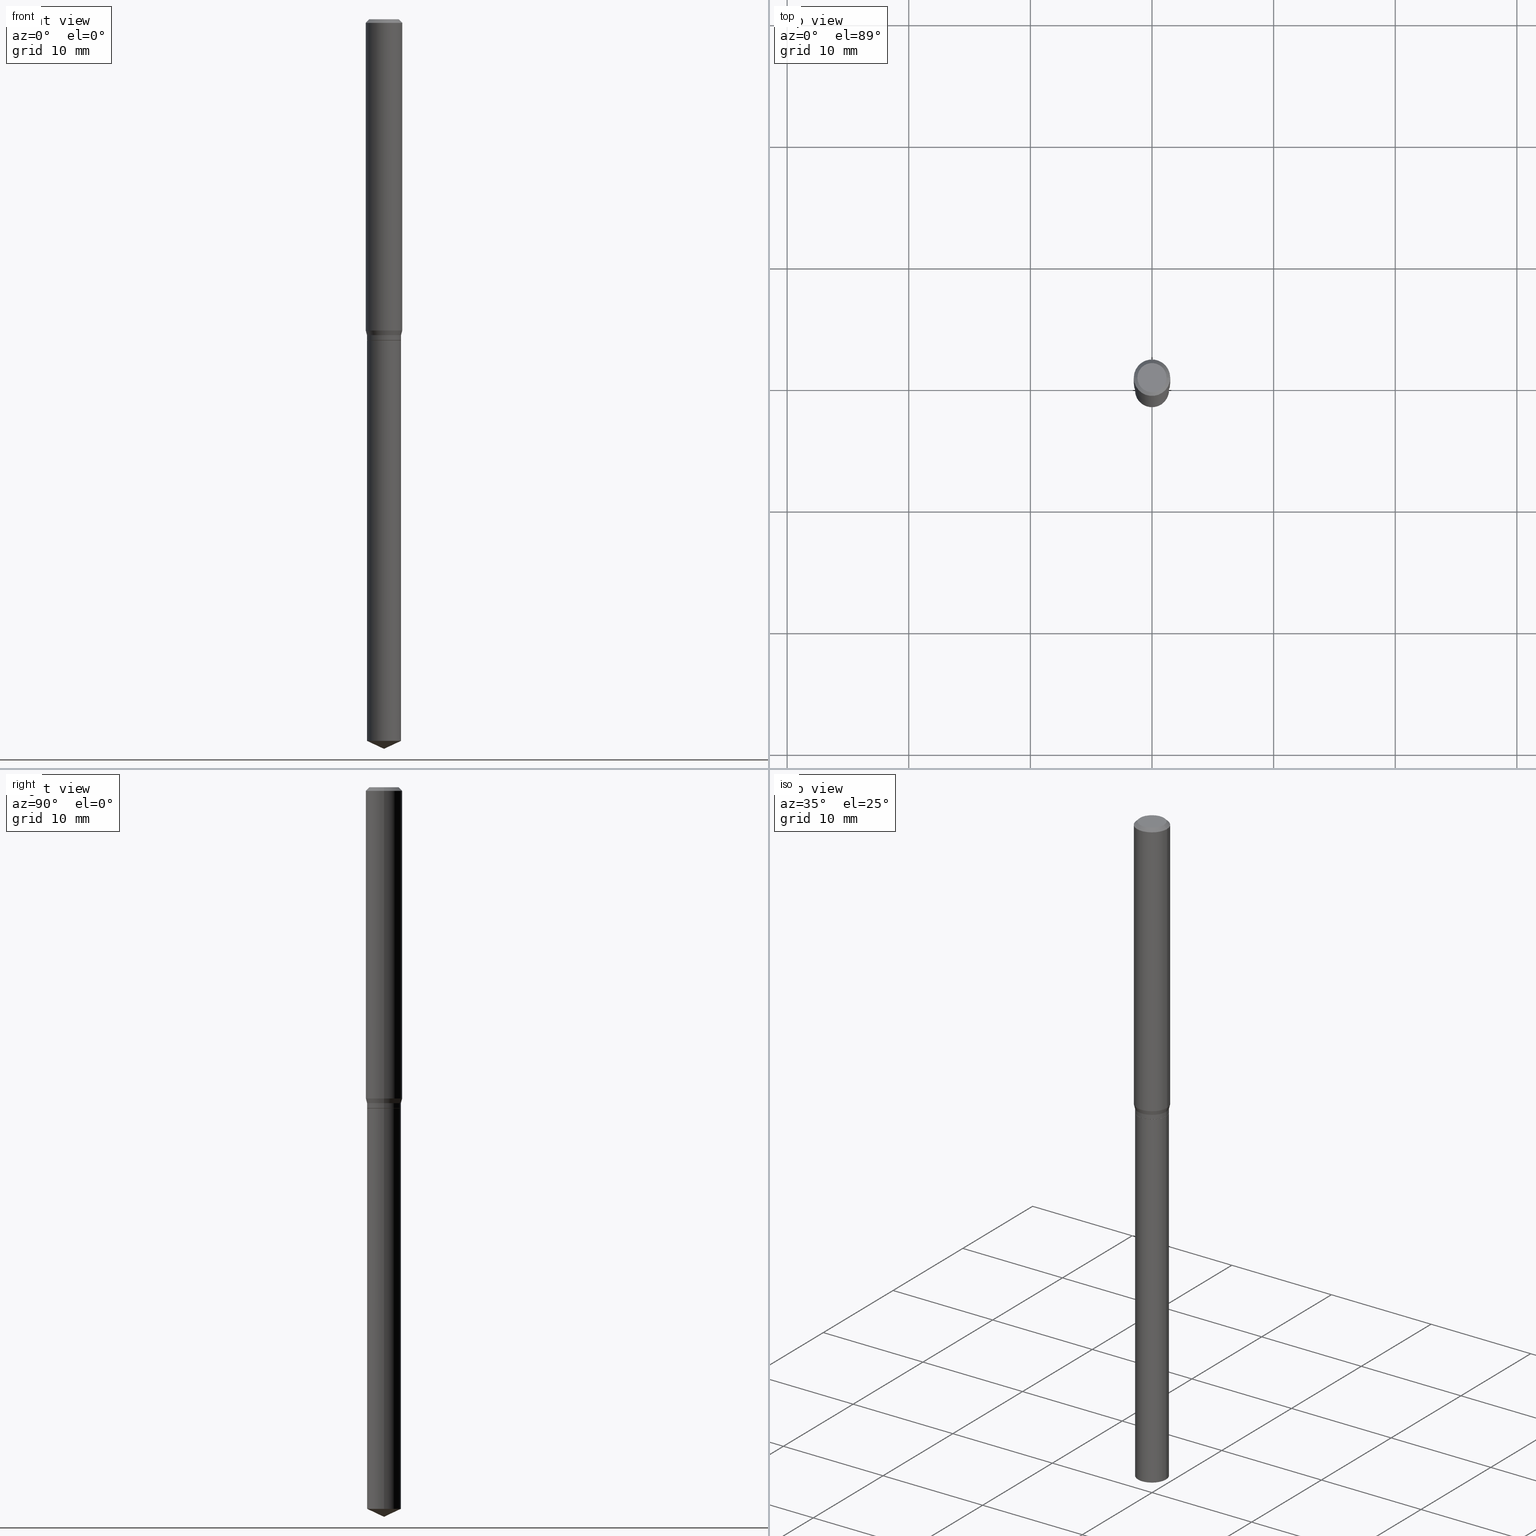
[diagram: canonical four-view strip — front | top / right | iso, engineering-drawing reading convention]
A machine part, canonical four-view strip (front | top / right | iso — engineering-drawing reading convention). The complete STEP part file that produces these views, byte-faithful:
ISO-10303-21;
HEADER;
FILE_DESCRIPTION (( 'STEP AP203' ),
    '1' );
FILE_NAME ('08219.STEP',
    '2024-04-24T13:49:58',
    ( '' ),
    ( '' ),
    'SwSTEP 2.0',
    'SolidWorks 2023',
    '' );
FILE_SCHEMA (( 'CONFIG_CONTROL_DESIGN' ));
ENDSEC;

DATA;
#1 = APPROVAL_STATUS ( 'not_yet_approved' ) ;
#2 = PRODUCT_DEFINITION_FORMATION_WITH_SPECIFIED_SOURCE ( 'ANY', '', #168, .NOT_KNOWN. ) ;
#3 = ORIENTED_EDGE ( 'NONE', *, *, #209, .T. ) ;
#4 = APPROVAL_STATUS ( 'not_yet_approved' ) ;
#5 = PLANE ( 'NONE',  #449 ) ;
#6 = APPLICATION_CONTEXT ( 'configuration controlled 3d designs of mechanical parts and assemblies' ) ;
#7 = EDGE_CURVE ( 'NONE', #441, #477, #428, .T. ) ;
#8 = ORIENTED_EDGE ( 'NONE', *, *, #271, .T. ) ;
#9 = CARTESIAN_POINT ( 'NONE',  ( 5.776197320209293305E-29, -8.246878922347511025E-15, -2.362000000000000099 ) ) ;
#10 = CARTESIAN_POINT ( 'NONE',  ( 5.713364540360402873E-29, -8.157170365135421298E-15, -2.336306448035660122 ) ) ;
#11 = AXIS2_PLACEMENT_3D ( 'NONE', #446, #294, #460 ) ;
#12 = AXIS2_PLACEMENT_3D ( 'NONE', #436, #248, #404 ) ;
#13 = DIRECTION ( 'NONE',  ( -2.445468806185136597E-29, 3.491481338843145583E-15, 1.000000000000000000 ) ) ;
#14 = DIRECTION ( 'NONE',  ( -2.445468806185136597E-29, 3.491481338843145583E-15, 1.000000000000000000 ) ) ;
#15 = ORIENTED_EDGE ( 'NONE', *, *, #141, .T. ) ;
#16 = CARTESIAN_POINT ( 'NONE',  ( 2.888098660104663766E-31, -4.123439461173779647E-17, -0.01181000000000007044 ) ) ;
#17 = ORIENTED_EDGE ( 'NONE', *, *, #312, .F. ) ;
#18 = AXIS2_PLACEMENT_3D ( 'NONE', #60, #136, #439 ) ;
#19 = DIRECTION ( 'NONE',  ( -2.445468806185136597E-29, 3.491481338843145583E-15, 1.000000000000000000 ) ) ;
#20 = EDGE_LOOP ( 'NONE', ( #88, #253, #49 ) ) ;
#21 = LINE ( 'NONE', #445, #440 ) ;
#22 = ORIENTED_EDGE ( 'NONE', *, *, #209, .F. ) ;
#23 = DIRECTION ( 'NONE',  ( -2.445468806185136597E-29, 3.491481338843145583E-15, 1.000000000000000000 ) ) ;
#24 = VERTEX_POINT ( 'NONE', #182 ) ;
#25 = ADVANCED_FACE ( 'NONE', ( #116 ), #5, .F. ) ;
#26 = DIRECTION ( 'NONE',  ( -2.445468806185136597E-29, 3.491481338843145583E-15, 1.000000000000000000 ) ) ;
#27 = LINE ( 'NONE', #487, #478 ) ;
#28 = CARTESIAN_POINT ( 'NONE',  ( 2.888098660104663766E-31, -4.123439461173779647E-17, -0.01181000000000007044 ) ) ;
#29 = DIRECTION ( 'NONE',  ( -2.445468806185136597E-29, 3.491481338843145583E-15, 1.000000000000000000 ) ) ;
#30 = CYLINDRICAL_SURFACE ( 'NONE', #11, 0.05510000000000000314 ) ;
#31 = PERSON_AND_ORGANIZATION ( #100, #138 ) ;
#32 = CONICAL_SURFACE ( 'NONE', #378, 84.42940631927528727, 1.134464013796320225 ) ;
#33 = CC_DESIGN_APPROVAL ( #411, ( #62 ) ) ;
#34 = PERSON_AND_ORGANIZATION_ROLE ( 'design_supplier' ) ;
#35 = EDGE_CURVE ( 'NONE', #215, #329, #101, .T. ) ;
#36 = CALENDAR_DATE ( 2024, 24, 4 ) ;
#37 = VERTEX_POINT ( 'NONE', #61 ) ;
#38 = COORDINATED_UNIVERSAL_TIME_OFFSET ( 5, 0, .BEHIND. ) ;
#39 = CYLINDRICAL_SURFACE ( 'NONE', #152, 0.05509999999999999620 ) ;
#40 = ORIENTED_EDGE ( 'NONE', *, *, #447, .T. ) ;
#41 = DIRECTION ( 'NONE',  ( -2.445468806185136597E-29, 3.491481338843145583E-15, 1.000000000000000000 ) ) ;
#42 = DIRECTION ( 'NONE',  ( 2.438088387897960049E-29, -3.491481338843145188E-15, -1.000000000000000000 ) ) ;
#43 = EDGE_CURVE ( 'NONE', #348, #135, #186, .T. ) ;
#44 = CC_DESIGN_PERSON_AND_ORGANIZATION_ASSIGNMENT ( #112, #452, ( #273 ) ) ;
#45 = ORIENTED_EDGE ( 'NONE', *, *, #236, .T. ) ;
#46 = CYLINDRICAL_SURFACE ( 'NONE', #200, 0.05509999999999999620 ) ;
#47 = AXIS2_PLACEMENT_3D ( 'NONE', #201, #13, #466 ) ;
#48 = DIRECTION ( 'NONE',  ( 1.000000000000000000, -6.982962677686266711E-15, 4.876176775795935793E-29 ) ) ;
#49 = ORIENTED_EDGE ( 'NONE', *, *, #422, .F. ) ;
#50 = EDGE_CURVE ( 'NONE', #205, #477, #485, .T. ) ;
#51 = CARTESIAN_POINT ( 'NONE',  ( -0.05510000000000000314, -3.236838359921982302E-15, -1.039200000000000124 ) ) ;
#52 = ORIENTED_EDGE ( 'NONE', *, *, #473, .T. ) ;
#53 = FACE_OUTER_BOUND ( 'NONE', #309, .T. ) ;
#54 = ADVANCED_FACE ( 'NONE', ( #222 ), #30, .T. ) ;
#55 = VERTEX_POINT ( 'NONE', #291 ) ;
#56 = DIRECTION ( 'NONE',  ( -2.445468806185136877E-29, 3.491481338843145188E-15, 1.000000000000000000 ) ) ;
#57 = EDGE_LOOP ( 'NONE', ( #469, #127, #421, #356 ) ) ;
#58 = CARTESIAN_POINT ( 'NONE',  ( 0.05509999999999999620, -3.955499208775398981E-15, -1.022700000000000164 ) ) ;
#59 = ORIENTED_EDGE ( 'NONE', *, *, #295, .T. ) ;
#60 = CARTESIAN_POINT ( 'NONE',  ( 2.500980948085539863E-29, -3.570737965234886183E-15, -1.022700000000000164 ) ) ;
#61 = CARTESIAN_POINT ( 'NONE',  ( 0.05509999999999999620, -8.541931608675934884E-15, -2.336306448035660122 ) ) ;
#62 = SECURITY_CLASSIFICATION ( '', '', #189 ) ;
#63 = CARTESIAN_POINT ( 'NONE',  ( 0.04724000000000000421, -3.852183633974369345E-16, -3.380025165621689721E-19 ) ) ;
#64 = CYLINDRICAL_SURFACE ( 'NONE', #86, 0.05510000000000000314 ) ;
#65 = ADVANCED_FACE ( 'NONE', ( #67 ), #32, .T. ) ;
#66 = EDGE_CURVE ( 'NONE', #329, #172, #374, .T. ) ;
#67 = FACE_OUTER_BOUND ( 'NONE', #20, .T. ) ;
#68 = APPROVAL_ROLE ( '' ) ;
#69 = AXIS2_PLACEMENT_3D ( 'NONE', #407, #299, #410 ) ;
#70 = CIRCLE ( 'NONE', #96, 0.04724000000000000421 ) ;
#71 = AXIS2_PLACEMENT_3D ( 'NONE', #298, #110, #263 ) ;
#72 = DATE_AND_TIME ( #190, #346 ) ;
#73 = ORIENTED_EDGE ( 'NONE', *, *, #462, .T. ) ;
#74 = PERSON_AND_ORGANIZATION_ROLE ( 'creator' ) ;
#75 = DIRECTION ( 'NONE',  ( -1.000000000000000000, 6.982962677686265922E-15, -4.876176775795935793E-29 ) ) ;
#76 = MANIFOLD_SOLID_BREP ( 'Body-Move/Copy2[2]', #256 ) ;
#77 = ORIENTED_EDGE ( 'NONE', *, *, #390, .T. ) ;
#78 = VECTOR ( 'NONE', #142, 39.37007874015748143 ) ;
#79 = CARTESIAN_POINT ( 'NONE',  ( -9.050210213589845843E-28, 1.292130163076976058E-13, 37.00807874015747956 ) ) ;
#80 = CONICAL_SURFACE ( 'NONE', #105, 0.05904999999999999832, 0.7853981633974452814 ) ;
#81 = CARTESIAN_POINT ( 'NONE',  ( 2.888098660104663766E-31, -4.123439461173779647E-17, -0.01181000000000007044 ) ) ;
#82 = ADVANCED_BREP_SHAPE_REPRESENTATION ( '08219', ( #243, #76, #71 ), #287 ) ;
#83 = DIRECTION ( 'NONE',  ( -1.000000000000000000, 6.982962677686265922E-15, -4.876176775795935793E-29 ) ) ;
#84 = ORIENTED_EDGE ( 'NONE', *, *, #319, .T. ) ;
#85 = DIRECTION ( 'NONE',  ( 1.000000000000000000, -6.982962677686265922E-15, 4.876176775795936353E-29 ) ) ;
#86 = AXIS2_PLACEMENT_3D ( 'NONE', #156, #29, #420 ) ;
#87 = CIRCLE ( 'NONE', #264, 0.05460000000000000270 ) ;
#88 = ORIENTED_EDGE ( 'NONE', *, *, #462, .F. ) ;
#89 = DIRECTION ( 'NONE',  ( -2.445468806185136597E-29, 3.491481338843145583E-15, 1.000000000000000000 ) ) ;
#90 = ORIENTED_EDGE ( 'NONE', *, *, #484, .T. ) ;
#91 = LINE ( 'NONE', #315, #429 ) ;
#92 = VERTEX_POINT ( 'NONE', #444 ) ;
#93 = CARTESIAN_POINT ( 'NONE',  ( -0.05904999999999999832, -1.360675682600244344E-15, -0.01181000000000007044 ) ) ;
#94 = ORIENTED_EDGE ( 'NONE', *, *, #471, .T. ) ;
#95 = CIRCLE ( 'NONE', #391, 0.05510000000000000314 ) ;
#96 = AXIS2_PLACEMENT_3D ( 'NONE', #474, #178, #212 ) ;
#97 = CARTESIAN_POINT ( 'NONE',  ( 5.713364540360402873E-29, -8.157170365135421298E-15, -2.336306448035660122 ) ) ;
#98 = VERTEX_POINT ( 'NONE', #103 ) ;
#99 =( CONVERSION_BASED_UNIT ( 'INCH', #442 ) LENGTH_UNIT ( ) NAMED_UNIT ( #311 ) );
#100 = PERSON ( 'UNSPECIFIED', 'UNSPECIFIED', 'UNSPECIFIED', ('UNSPECIFIED'), ('UNSPECIFIED'), ('UNSPECIFIED') ) ;
#101 = LINE ( 'NONE', #194, #159 ) ;
#102 = FACE_OUTER_BOUND ( 'NONE', #353, .T. ) ;
#103 = CARTESIAN_POINT ( 'NONE',  ( 0.05509999999999999620, -3.955499208775398981E-15, -1.022700000000000164 ) ) ;
#104 = VECTOR ( 'NONE', #347, 39.37007874015748143 ) ;
#105 = AXIS2_PLACEMENT_3D ( 'NONE', #81, #463, #427 ) ;
#106 = CC_DESIGN_SECURITY_CLASSIFICATION ( #62, ( #2 ) ) ;
#107 = CARTESIAN_POINT ( 'NONE',  ( 2.888098660104663766E-31, -4.123439461173779647E-17, -0.01181000000000007044 ) ) ;
#108 = DIRECTION ( 'NONE',  ( 1.000000000000000000, -6.982962677686265133E-15, 0.000000000000000000 ) ) ;
#109 = CC_DESIGN_PERSON_AND_ORGANIZATION_ASSIGNMENT ( #31, #74, ( #2 ) ) ;
#110 = DIRECTION ( 'NONE',  ( 0.000000000000000000, 0.000000000000000000, 1.000000000000000000 ) ) ;
#111 = APPROVAL_DATE_TIME ( #303, #166 ) ;
#112 = PERSON_AND_ORGANIZATION ( #100, #138 ) ;
#113 = CIRCLE ( 'NONE', #313, 0.05905000000000011628 ) ;
#114 = CONICAL_SURFACE ( 'NONE', #370, 0.05904999999999999832, 0.7853981633974452814 ) ;
#115 = COORDINATED_UNIVERSAL_TIME_OFFSET ( 5, 0, .BEHIND. ) ;
#116 = FACE_OUTER_BOUND ( 'NONE', #306, .T. ) ;
#117 = ORIENTED_EDGE ( 'NONE', *, *, #408, .T. ) ;
#118 = CARTESIAN_POINT ( 'NONE',  ( -0.05509999999999999620, 3.915090474038151754E-16, -2.710333234730452780E-30 ) ) ;
#119 = ORIENTED_EDGE ( 'NONE', *, *, #120, .F. ) ;
#120 = EDGE_CURVE ( 'NONE', #55, #441, #113, .T. ) ;
#121 = FACE_OUTER_BOUND ( 'NONE', #317, .T. ) ;
#122 = VECTOR ( 'NONE', #406, 39.37007874015748143 ) ;
#123 = FACE_OUTER_BOUND ( 'NONE', #399, .T. ) ;
#124 = EDGE_LOOP ( 'NONE', ( #276, #84, #59, #163 ) ) ;
#125 = CARTESIAN_POINT ( 'NONE',  ( 2.500980948085539863E-29, -3.570737965234886183E-15, -1.022700000000000164 ) ) ;
#126 = EDGE_CURVE ( 'NONE', #475, #24, #27, .T. ) ;
#127 = ORIENTED_EDGE ( 'NONE', *, *, #312, .T. ) ;
#128 = FACE_OUTER_BOUND ( 'NONE', #124, .T. ) ;
#129 = VECTOR ( 'NONE', #144, 39.37007874015748143 ) ;
#130 = APPROVAL_PERSON_ORGANIZATION ( #229, #411, #343 ) ;
#131 = ORIENTED_EDGE ( 'NONE', *, *, #390, .F. ) ;
#132 = DIRECTION ( 'NONE',  ( -2.445468806185136597E-29, 3.491481338843145583E-15, 1.000000000000000000 ) ) ;
#133 = ORIENTED_EDGE ( 'NONE', *, *, #66, .F. ) ;
#134 = FACE_OUTER_BOUND ( 'NONE', #274, .T. ) ;
#135 = VERTEX_POINT ( 'NONE', #257 ) ;
#136 = DIRECTION ( 'NONE',  ( -2.445468806185136597E-29, 3.491481338843145583E-15, 1.000000000000000000 ) ) ;
#137 = VERTEX_POINT ( 'NONE', #386 ) ;
#138 = ORGANIZATION ( 'UNSPECIFIED', 'UNSPECIFIED', '' ) ;
#139 = CARTESIAN_POINT ( 'NONE',  ( 2.540108448984501382E-29, -3.626601666656375086E-15, -1.038699999999999957 ) ) ;
#140 = CARTESIAN_POINT ( 'NONE',  ( 0.05460000000000000270, -4.009617169527467169E-15, -1.039199999999999902 ) ) ;
#141 = EDGE_CURVE ( 'NONE', #92, #137, #277, .T. ) ;
#142 = DIRECTION ( 'NONE',  ( -0.7071067811865453523, 2.468850131082234184E-15, -0.7071067811865496822 ) ) ;
#143 = DIRECTION ( 'NONE',  ( 1.000000000000000000, -6.982962677686274599E-15, 0.000000000000000000 ) ) ;
#144 = DIRECTION ( 'NONE',  ( -2.445468806185136877E-29, 3.491481338843145188E-15, 1.000000000000000000 ) ) ;
#145 = EDGE_CURVE ( 'NONE', #37, #92, #179, .T. ) ;
#146 = VECTOR ( 'NONE', #281, 39.37007874015748143 ) ;
#147 = CIRCLE ( 'NONE', #392, 0.05509999999999999620 ) ;
#148 = PERSON_AND_ORGANIZATION ( #100, #138 ) ;
#149 = CARTESIAN_POINT ( 'NONE',  ( 0.05510000000000000314, -4.013108650866310965E-15, -1.039200000000000124 ) ) ;
#150 = ADVANCED_FACE ( 'NONE', ( #482 ), #322, .T. ) ;
#151 = COORDINATED_UNIVERSAL_TIME_OFFSET ( 5, 0, .BEHIND. ) ;
#152 = AXIS2_PLACEMENT_3D ( 'NONE', #393, #275, #85 ) ;
#153 = AXIS2_PLACEMENT_3D ( 'NONE', #97, #26, #143 ) ;
#154 = ORIENTED_EDGE ( 'NONE', *, *, #387, .F. ) ;
#155 = APPROVAL_DATE_TIME ( #341, #375 ) ;
#156 = CARTESIAN_POINT ( 'NONE',  ( 2.541331183387594184E-29, -3.628347407325797379E-15, -1.039200000000000124 ) ) ;
#157 = CC_DESIGN_PERSON_AND_ORGANIZATION_ASSIGNMENT ( #188, #34, ( #2 ) ) ;
#158 = CYLINDRICAL_SURFACE ( 'NONE', #47, 0.05905000000000006077 ) ;
#159 = VECTOR ( 'NONE', #184, 39.37007874015748143 ) ;
#160 = DIRECTION ( 'NONE',  ( -2.445468806185136597E-29, 3.491481338843145583E-15, 1.000000000000000000 ) ) ;
#161 = CIRCLE ( 'NONE', #383, 0.05509999999999999620 ) ;
#162 = CIRCLE ( 'NONE', #153, 0.05510000000000000314 ) ;
#163 = ORIENTED_EDGE ( 'NONE', *, *, #447, .F. ) ;
#164 = DIRECTION ( 'NONE',  ( 1.000000000000000000, -6.982962677686266711E-15, 0.000000000000000000 ) ) ;
#165 = FACE_OUTER_BOUND ( 'NONE', #394, .T. ) ;
#166 = APPROVAL ( #1, 'UNSPECIFIED' ) ;
#167 = ORIENTED_EDGE ( 'NONE', *, *, #458, .T. ) ;
#168 = PRODUCT ( '08219', '08219', '', ( #414 ) ) ;
#169 = CARTESIAN_POINT ( 'NONE',  ( 0.05904999999999999832, -4.535783407291118600E-16, -0.01181000000000007044 ) ) ;
#170 = VECTOR ( 'NONE', #490, 39.37007874015748143 ) ;
#171 = AXIS2_PLACEMENT_3D ( 'NONE', #396, #160, #272 ) ;
#172 = VERTEX_POINT ( 'NONE', #451 ) ;
#173 = CARTESIAN_POINT ( 'NONE',  ( 0.05509999999999999620, -3.847612435405132409E-16, 2.686773403463560667E-30 ) ) ;
#174 = ORIENTED_EDGE ( 'NONE', *, *, #471, .F. ) ;
#175 = PRODUCT_RELATED_PRODUCT_CATEGORY ( 'detail', '', ( #168 ) ) ;
#176 = DIRECTION ( 'NONE',  ( 0.9063077870366524902, -4.853149677051415866E-15, 0.4226182617406940567 ) ) ;
#177 = EDGE_LOOP ( 'NONE', ( #403, #154 ) ) ;
#178 = DIRECTION ( 'NONE',  ( -2.445468806185136597E-29, 3.491481338843145583E-15, 1.000000000000000000 ) ) ;
#179 = LINE ( 'NONE', #149, #129 ) ;
#180 = AXIS2_PLACEMENT_3D ( 'NONE', #362, #19, #286 ) ;
#181 = DIRECTION ( 'NONE',  ( -2.445468806185136597E-29, 3.491481338843145583E-15, 1.000000000000000000 ) ) ;
#182 = CARTESIAN_POINT ( 'NONE',  ( 0.05509999999999999620, -4.011362910196888672E-15, -1.038699999999999957 ) ) ;
#183 = PLANE ( 'NONE',  #296 ) ;
#184 = DIRECTION ( 'NONE',  ( -0.7071067811865173747, 7.493145998870245297E-15, 0.7071067811865776598 ) ) ;
#185 = CALENDAR_DATE ( 2024, 24, 4 ) ;
#186 = LINE ( 'NONE', #333, #361 ) ;
#187 = LOCAL_TIME ( 9, 49, 58.00000000000000000, #454 ) ;
#188 = PERSON_AND_ORGANIZATION ( #100, #138 ) ;
#189 = SECURITY_CLASSIFICATION_LEVEL ( 'unclassified' ) ;
#190 = CALENDAR_DATE ( 2024, 24, 4 ) ;
#191 = ORIENTED_EDGE ( 'NONE', *, *, #422, .T. ) ;
#192 = APPROVAL_DATE_TIME ( #259, #411 ) ;
#193 = AXIS2_PLACEMENT_3D ( 'NONE', #328, #181, #283 ) ;
#194 = CARTESIAN_POINT ( 'NONE',  ( -0.05460000000000000270, -3.240391073600782017E-15, -1.039199999999999902 ) ) ;
#195 = ORIENTED_EDGE ( 'NONE', *, *, #145, .F. ) ;
#196 = DIRECTION ( 'NONE',  ( 0.7071067811865453523, -7.319954787623248157E-15, -0.7071067811865496822 ) ) ;
#197 = ADVANCED_FACE ( 'NONE', ( #260 ), #64, .T. ) ;
#198 = LINE ( 'NONE', #318, #464 ) ;
#199 = ORIENTED_EDGE ( 'NONE', *, *, #43, .F. ) ;
#200 = AXIS2_PLACEMENT_3D ( 'NONE', #425, #89, #310 ) ;
#201 = CARTESIAN_POINT ( 'NONE',  ( 0.000000000000000000, 0.000000000000000000, 0.000000000000000000 ) ) ;
#202 = CIRCLE ( 'NONE', #324, 0.05460000000000000270 ) ;
#203 = ORIENTED_EDGE ( 'NONE', *, *, #35, .F. ) ;
#204 = CARTESIAN_POINT ( 'NONE',  ( -0.05509999999999999620, -3.207160768541815164E-15, -1.038699999999999957 ) ) ;
#205 = VERTEX_POINT ( 'NONE', #376 ) ;
#206 = FACE_OUTER_BOUND ( 'NONE', #244, .T. ) ;
#207 = ORIENTED_EDGE ( 'NONE', *, *, #120, .T. ) ;
#208 = DIRECTION ( 'NONE',  ( -2.445468806185136597E-29, 3.491481338843145583E-15, 1.000000000000000000 ) ) ;
#209 = EDGE_CURVE ( 'NONE', #329, #24, #438, .T. ) ;
#210 = AXIS2_PLACEMENT_3D ( 'NONE', #139, #230, #218 ) ;
#211 = ORIENTED_EDGE ( 'NONE', *, *, #330, .F. ) ;
#212 = DIRECTION ( 'NONE',  ( 1.000000000000000000, -6.982962677686266711E-15, 4.876185090822587894E-29 ) ) ;
#213 = ORIENTED_EDGE ( 'NONE', *, *, #50, .T. ) ;
#214 = DIRECTION ( 'NONE',  ( 1.000000000000000000, -6.982962677686265922E-15, 0.000000000000000000 ) ) ;
#215 = VERTEX_POINT ( 'NONE', #255 ) ;
#216 = ADVANCED_FACE ( 'NONE', ( #382 ), #39, .T. ) ;
#217 = LINE ( 'NONE', #58, #122 ) ;
#218 = DIRECTION ( 'NONE',  ( 1.000000000000000000, -6.982962677686265922E-15, 0.000000000000000000 ) ) ;
#219 = CIRCLE ( 'NONE', #331, 0.05904999999999999832 ) ;
#220 = DIRECTION ( 'NONE',  ( -2.445468806185136597E-29, 3.491481338843145583E-15, 1.000000000000000000 ) ) ;
#221 = DIRECTION ( 'NONE',  ( -0.9063077870366524902, 7.915267918739014631E-15, 0.4226182617406940567 ) ) ;
#222 = FACE_OUTER_BOUND ( 'NONE', #360, .T. ) ;
#223 = CC_DESIGN_PERSON_AND_ORGANIZATION_ASSIGNMENT ( #226, #418, ( #168 ) ) ;
#224 = CONICAL_SURFACE ( 'NONE', #171, 84.42940631927528727, 1.134464013796320225 ) ;
#225 = AXIS2_PLACEMENT_3D ( 'NONE', #107, #220, #290 ) ;
#226 = PERSON_AND_ORGANIZATION ( #100, #138 ) ;
#227 = DATE_TIME_ROLE ( 'classification_date' ) ;
#228 = EDGE_CURVE ( 'NONE', #137, #92, #95, .T. ) ;
#229 = PERSON_AND_ORGANIZATION ( #100, #138 ) ;
#230 = DIRECTION ( 'NONE',  ( -2.445468806185136597E-29, 3.491481338843145583E-15, 1.000000000000000000 ) ) ;
#231 = AXIS2_PLACEMENT_3D ( 'NONE', #336, #289, #108 ) ;
#232 = CONICAL_SURFACE ( 'NONE', #18, 0.05509999999999999620, 0.2617993877991502960 ) ;
#233 = DIRECTION ( 'NONE',  ( 0.7071067811865173747, -2.468850131081940727E-15, 0.7071067811865776598 ) ) ;
#234 = PLANE ( 'NONE',  #424 ) ;
#235 = CARTESIAN_POINT ( 'NONE',  ( 0.000000000000000000, 0.000000000000000000, 0.000000000000000000 ) ) ;
#236 = EDGE_CURVE ( 'NONE', #98, #172, #161, .T. ) ;
#237 = ORIENTED_EDGE ( 'NONE', *, *, #408, .F. ) ;
#238 = DIRECTION ( 'NONE',  ( -2.445468806185136597E-29, 3.491481338843145583E-15, 1.000000000000000000 ) ) ;
#239 = APPROVAL_PERSON_ORGANIZATION ( #377, #166, #68 ) ;
#240 = ORIENTED_EDGE ( 'NONE', *, *, #330, .T. ) ;
#241 = DIRECTION ( 'NONE',  ( -2.445468806185136597E-29, 3.491481338843145583E-15, 1.000000000000000000 ) ) ;
#242 = APPLICATION_CONTEXT ( 'configuration controlled 3d designs of mechanical parts and assemblies' ) ;
#243 = MANIFOLD_SOLID_BREP ( 'Body-Move/Copy2[1]', #321 ) ;
#244 = EDGE_LOOP ( 'NONE', ( #207, #364, #434, #247 ) ) ;
#245 = ADVANCED_FACE ( 'NONE', ( #128 ), #433, .T. ) ;
#246 = FACE_OUTER_BOUND ( 'NONE', #437, .T. ) ;
#247 = ORIENTED_EDGE ( 'NONE', *, *, #295, .F. ) ;
#248 = DIRECTION ( 'NONE',  ( -2.445468806185136597E-29, 3.491481338843145583E-15, 1.000000000000000000 ) ) ;
#249 = VECTOR ( 'NONE', #426, 39.37007874015748143 ) ;
#250 = APPROVAL_PERSON_ORGANIZATION ( #305, #375, #337 ) ;
#251 = ORIENTED_EDGE ( 'NONE', *, *, #236, .F. ) ;
#252 =( LENGTH_UNIT ( ) NAMED_UNIT ( * ) SI_UNIT ( $, .METRE. ) );
#253 = ORIENTED_EDGE ( 'NONE', *, *, #43, .T. ) ;
#254 = FACE_OUTER_BOUND ( 'NONE', #177, .T. ) ;
#255 = CARTESIAN_POINT ( 'NONE',  ( -0.05460000000000000270, -3.237741846426671211E-15, -1.039199999999999902 ) ) ;
#256 = CLOSED_SHELL ( 'NONE', ( #479, #372, #350, #417, #216, #261, #435, #245, #285, #297, #443, #150 ) ) ;
#257 = CARTESIAN_POINT ( 'NONE',  ( -0.05509999999999999620, -7.765661317731605038E-15, -2.336306448035660122 ) ) ;
#258 = LOCAL_TIME ( 9, 49, 58.00000000000000000, #38 ) ;
#259 = DATE_AND_TIME ( #455, #258 ) ;
#260 = FACE_OUTER_BOUND ( 'NONE', #57, .T. ) ;
#261 = ADVANCED_FACE ( 'NONE', ( #165 ), #46, .T. ) ;
#262 = CC_DESIGN_DATE_AND_TIME_ASSIGNMENT ( #72, #227, ( #62 ) ) ;
#263 = DIRECTION ( 'NONE',  ( 1.000000000000000000, 0.000000000000000000, 0.000000000000000000 ) ) ;
#264 = AXIS2_PLACEMENT_3D ( 'NONE', #398, #208, #476 ) ;
#265 = DIRECTION ( 'NONE',  ( -2.445468806185136597E-29, 3.491481338843145583E-15, 1.000000000000000000 ) ) ;
#266 = ORIENTED_EDGE ( 'NONE', *, *, #35, .T. ) ;
#267 = DIRECTION ( 'NONE',  ( -2.445468806185136597E-29, 3.491481338843145583E-15, 1.000000000000000000 ) ) ;
#268 = ORIENTED_EDGE ( 'NONE', *, *, #385, .T. ) ;
#269 = AXIS2_PLACEMENT_3D ( 'NONE', #10, #41, #278 ) ;
#270 = DIRECTION ( 'NONE',  ( 1.000000000000000000, -6.982962677686265133E-15, 0.000000000000000000 ) ) ;
#271 = EDGE_CURVE ( 'NONE', #172, #441, #91, .T. ) ;
#272 = DIRECTION ( 'NONE',  ( 1.000000000000000000, -6.982962677686266711E-15, 0.000000000000000000 ) ) ;
#273 = PRODUCT_DEFINITION ( 'UNKNOWN', '', #2, #456 ) ;
#274 = EDGE_LOOP ( 'NONE', ( #288, #52, #117, #368 ) ) ;
#275 = DIRECTION ( 'NONE',  ( -2.445468806185136597E-29, 3.491481338843145583E-15, 1.000000000000000000 ) ) ;
#276 = ORIENTED_EDGE ( 'NONE', *, *, #7, .F. ) ;
#277 = CIRCLE ( 'NONE', #231, 0.05510000000000000314 ) ;
#278 = DIRECTION ( 'NONE',  ( 1.000000000000000000, -6.982962677686274599E-15, 0.000000000000000000 ) ) ;
#279 = CC_DESIGN_APPROVAL ( #375, ( #2 ) ) ;
#280 = VERTEX_POINT ( 'NONE', #169 ) ;
#281 = DIRECTION ( 'NONE',  ( -2.445468806185136877E-29, 3.491481338843145188E-15, 1.000000000000000000 ) ) ;
#282 = EDGE_LOOP ( 'NONE', ( #327, #461, #251, #320 ) ) ;
#283 = DIRECTION ( 'NONE',  ( 1.000000000000000000, -6.982962677686265922E-15, 0.000000000000000000 ) ) ;
#284 = ORIENTED_EDGE ( 'NONE', *, *, #365, .F. ) ;
#285 = ADVANCED_FACE ( 'NONE', ( #246 ), #80, .T. ) ;
#286 = DIRECTION ( 'NONE',  ( 1.000000000000000000, -6.982962677686265133E-15, 0.000000000000000000 ) ) ;
#287 =( GEOMETRIC_REPRESENTATION_CONTEXT ( 3 ) GLOBAL_UNCERTAINTY_ASSIGNED_CONTEXT ( ( #301 ) ) GLOBAL_UNIT_ASSIGNED_CONTEXT ( ( #99, #380, #457 ) ) REPRESENTATION_CONTEXT ( 'NONE', 'WORKASPACE' ) );
#288 = ORIENTED_EDGE ( 'NONE', *, *, #271, .F. ) ;
#289 = DIRECTION ( 'NONE',  ( -2.445468806185136597E-29, 3.491481338843145583E-15, 1.000000000000000000 ) ) ;
#290 = DIRECTION ( 'NONE',  ( 1.000000000000000000, -6.982962677686266711E-15, 0.000000000000000000 ) ) ;
#291 = CARTESIAN_POINT ( 'NONE',  ( 0.05905000000000011628, -3.931611887638806444E-15, -1.007958399310102893 ) ) ;
#292 = DIRECTION ( 'NONE',  ( -2.445468806185136597E-29, 3.491481338843145583E-15, 1.000000000000000000 ) ) ;
#293 = AXIS2_PLACEMENT_3D ( 'NONE', #235, #238, #48 ) ;
#294 = DIRECTION ( 'NONE',  ( -2.445468806185136597E-29, 3.491481338843145583E-15, 1.000000000000000000 ) ) ;
#295 = EDGE_CURVE ( 'NONE', #55, #280, #465, .T. ) ;
#296 = AXIS2_PLACEMENT_3D ( 'NONE', #481, #448, #334 ) ;
#297 = ADVANCED_FACE ( 'NONE', ( #121 ), #234, .F. ) ;
#298 = CARTESIAN_POINT ( 'NONE',  ( 0.000000000000000000, 0.000000000000000000, 0.000000000000000000 ) ) ;
#299 = DIRECTION ( 'NONE',  ( -2.445468806185136597E-29, 3.491481338843145583E-15, 1.000000000000000000 ) ) ;
#300 = APPLICATION_PROTOCOL_DEFINITION ( 'international standard', 'config_control_design', 1994, #242 ) ;
#301 = UNCERTAINTY_MEASURE_WITH_UNIT (LENGTH_MEASURE( 1.000000000000000082E-05 ), #99, 'distance_accuracy_value', 'NONE');
#302 = PRODUCT_DEFINITION_SHAPE ( 'NONE', 'NONE',  #273 ) ;
#303 = DATE_AND_TIME ( #36, #480 ) ;
#304 = LOCAL_TIME ( 9, 49, 58.00000000000000000, #151 ) ;
#305 = PERSON_AND_ORGANIZATION ( #100, #138 ) ;
#306 = EDGE_LOOP ( 'NONE', ( #15, #405 ) ) ;
#307 = SHAPE_DEFINITION_REPRESENTATION ( #302, #82 ) ;
#308 = CARTESIAN_POINT ( 'NONE',  ( 4.340259238745102629E-29, -1.052180043427518457E-15, -1.039199999999999902 ) ) ;
#309 = EDGE_LOOP ( 'NONE', ( #45, #8, #119, #237 ) ) ;
#310 = DIRECTION ( 'NONE',  ( 1.000000000000000000, -6.982962677686265922E-15, 4.876176775795936353E-29 ) ) ;
#311 = DIMENSIONAL_EXPONENTS ( 1.000000000000000000, 0.000000000000000000, 0.000000000000000000, 0.000000000000000000, 0.000000000000000000, 0.000000000000000000, 0.000000000000000000 ) ;
#312 = EDGE_CURVE ( 'NONE', #135, #37, #489, .T. ) ;
#313 = AXIS2_PLACEMENT_3D ( 'NONE', #423, #265, #453 ) ;
#314 = AXIS2_PLACEMENT_3D ( 'NONE', #326, #483, #214 ) ;
#315 = CARTESIAN_POINT ( 'NONE',  ( -0.05509999999999999620, -3.179228917831070712E-15, -1.022700000000000164 ) ) ;
#316 = CARTESIAN_POINT ( 'NONE',  ( 0.05905000000000006077, -4.123439461173744764E-16, 2.879382386107503023E-30 ) ) ;
#317 = EDGE_LOOP ( 'NONE', ( #77, #94 ) ) ;
#318 = CARTESIAN_POINT ( 'NONE',  ( 0.05904999999999999832, -4.463468013801466955E-16, -0.01181000000000007044 ) ) ;
#319 = EDGE_CURVE ( 'NONE', #441, #55, #338, .T. ) ;
#320 = ORIENTED_EDGE ( 'NONE', *, *, #484, .F. ) ;
#321 = CLOSED_SHELL ( 'NONE', ( #54, #65, #335, #197, #25 ) ) ;
#322 = CONICAL_SURFACE ( 'NONE', #69, 0.05460000000000000270, 0.7853981633974056464 ) ;
#323 = DIRECTION ( 'NONE',  ( 2.445468806185136597E-29, -3.491481338843145583E-15, -1.000000000000000000 ) ) ;
#324 = AXIS2_PLACEMENT_3D ( 'NONE', #367, #23, #369 ) ;
#325 = ORIENTED_EDGE ( 'NONE', *, *, #126, .T. ) ;
#326 = CARTESIAN_POINT ( 'NONE',  ( 2.500980948085539863E-29, -3.570737965234886183E-15, -1.022700000000000164 ) ) ;
#327 = ORIENTED_EDGE ( 'NONE', *, *, #365, .T. ) ;
#328 = CARTESIAN_POINT ( 'NONE',  ( 2.500980948085539863E-29, -3.570737965234886183E-15, -1.022700000000000164 ) ) ;
#329 = VERTEX_POINT ( 'NONE', #204 ) ;
#330 = EDGE_CURVE ( 'NONE', #384, #280, #198, .T. ) ;
#331 = AXIS2_PLACEMENT_3D ( 'NONE', #28, #292, #486 ) ;
#332 = CARTESIAN_POINT ( 'NONE',  ( -0.05905000000000006077, 4.195754854663395916E-16, -2.904631170795524694E-30 ) ) ;
#333 = CARTESIAN_POINT ( 'NONE',  ( 5.776197320209293305E-29, -8.246878922347511025E-15, -2.362000000000000099 ) ) ;
#334 = DIRECTION ( 'NONE',  ( 1.000000000000000000, -6.982962677686265922E-15, 4.876176775795935793E-29 ) ) ;
#335 = ADVANCED_FACE ( 'NONE', ( #123 ), #224, .T. ) ;
#336 = CARTESIAN_POINT ( 'NONE',  ( 2.541331183387593623E-29, -3.628347407325796590E-15, -1.039199999999999902 ) ) ;
#337 = APPROVAL_ROLE ( '' ) ;
#338 = CIRCLE ( 'NONE', #400, 0.05905000000000011628 ) ;
#339 = DIRECTION ( 'NONE',  ( 1.000000000000000000, -6.982962677686266711E-15, 0.000000000000000000 ) ) ;
#340 = CONICAL_SURFACE ( 'NONE', #314, 0.05509999999999999620, 0.2617993877991502960 ) ;
#341 = DATE_AND_TIME ( #415, #187 ) ;
#342 = EDGE_CURVE ( 'NONE', #135, #137, #349, .T. ) ;
#343 = APPROVAL_ROLE ( '' ) ;
#344 = DATE_TIME_ROLE ( 'creation_date' ) ;
#345 = ORIENTED_EDGE ( 'NONE', *, *, #342, .T. ) ;
#346 = LOCAL_TIME ( 9, 49, 58.00000000000000000, #115 ) ;
#347 = DIRECTION ( 'NONE',  ( -2.445468806185136877E-29, 3.491481338843145188E-15, 1.000000000000000000 ) ) ;
#348 = VERTEX_POINT ( 'NONE', #9 ) ;
#349 = LINE ( 'NONE', #51, #249 ) ;
#350 = ADVANCED_FACE ( 'NONE', ( #206 ), #158, .T. ) ;
#351 = CC_DESIGN_PERSON_AND_ORGANIZATION_ASSIGNMENT ( #148, #379, ( #62 ) ) ;
#352 = CARTESIAN_POINT ( 'NONE',  ( 2.541331183387593623E-29, -3.628347407325796590E-15, -1.039199999999999902 ) ) ;
#353 = EDGE_LOOP ( 'NONE', ( #167, #266, #284, #381 ) ) ;
#354 = VECTOR ( 'NONE', #56, 39.37007874015748143 ) ;
#355 = DIRECTION ( 'NONE',  ( -0.2588190451025215721, 5.211531920934551831E-15, 0.9659258262890679791 ) ) ;
#356 = ORIENTED_EDGE ( 'NONE', *, *, #228, .F. ) ;
#357 = CARTESIAN_POINT ( 'NONE',  ( 2.540108448984501382E-29, -3.626601666656375086E-15, -1.038699999999999957 ) ) ;
#358 = ORIENTED_EDGE ( 'NONE', *, *, #141, .F. ) ;
#359 = FACE_OUTER_BOUND ( 'NONE', #397, .T. ) ;
#360 = EDGE_LOOP ( 'NONE', ( #191, #345, #358, #195 ) ) ;
#361 = VECTOR ( 'NONE', #221, 39.37007874015748143 ) ;
#362 = CARTESIAN_POINT ( 'NONE',  ( 2.541331183387593623E-29, -3.628347407325796590E-15, -1.039199999999999902 ) ) ;
#363 = CIRCLE ( 'NONE', #193, 0.05509999999999999620 ) ;
#364 = ORIENTED_EDGE ( 'NONE', *, *, #7, .T. ) ;
#365 = EDGE_CURVE ( 'NONE', #24, #329, #147, .T. ) ;
#366 = ORIENTED_EDGE ( 'NONE', *, *, #387, .T. ) ;
#367 = CARTESIAN_POINT ( 'NONE',  ( 2.541331183387593623E-29, -3.628347407325796590E-15, -1.039199999999999902 ) ) ;
#368 = ORIENTED_EDGE ( 'NONE', *, *, #319, .F. ) ;
#369 = DIRECTION ( 'NONE',  ( 1.000000000000000000, -6.982962677686265133E-15, 0.000000000000000000 ) ) ;
#370 = AXIS2_PLACEMENT_3D ( 'NONE', #16, #323, #373 ) ;
#371 = DIRECTION ( 'NONE',  ( 2.438088387897960049E-29, -3.491481338843145188E-15, -1.000000000000000000 ) ) ;
#372 = ADVANCED_FACE ( 'NONE', ( #359 ), #114, .T. ) ;
#373 = DIRECTION ( 'NONE',  ( -1.000000000000000000, 6.982962677686266711E-15, 0.000000000000000000 ) ) ;
#374 = LINE ( 'NONE', #118, #170 ) ;
#375 = APPROVAL ( #4, 'UNSPECIFIED' ) ;
#376 = CARTESIAN_POINT ( 'NONE',  ( -0.04724000000000000421, 3.504923541997677355E-16, -3.380025165670481712E-19 ) ) ;
#377 = PERSON_AND_ORGANIZATION ( #100, #138 ) ;
#378 = AXIS2_PLACEMENT_3D ( 'NONE', #79, #267, #339 ) ;
#379 = PERSON_AND_ORGANIZATION_ROLE ( 'classification_officer' ) ;
#380 =( NAMED_UNIT ( * ) PLANE_ANGLE_UNIT ( ) SI_UNIT ( $, .RADIAN. ) );
#381 = ORIENTED_EDGE ( 'NONE', *, *, #126, .F. ) ;
#382 = FACE_OUTER_BOUND ( 'NONE', #282, .T. ) ;
#383 = AXIS2_PLACEMENT_3D ( 'NONE', #125, #132, #470 ) ;
#384 = VERTEX_POINT ( 'NONE', #63 ) ;
#385 = EDGE_CURVE ( 'NONE', #280, #477, #219, .T. ) ;
#386 = CARTESIAN_POINT ( 'NONE',  ( -0.05510000000000000314, -5.501249838826793473E-15, -1.039199999999999902 ) ) ;
#387 = EDGE_CURVE ( 'NONE', #215, #475, #87, .T. ) ;
#388 = CARTESIAN_POINT ( 'NONE',  ( 4.132873053354867254E-48, -5.900647395337818946E-34, -1.690012582823346072E-19 ) ) ;
#389 = DIRECTION ( 'NONE',  ( -2.445468806185136597E-29, 3.491481338843145583E-15, 1.000000000000000000 ) ) ;
#390 = EDGE_CURVE ( 'NONE', #205, #384, #450, .T. ) ;
#391 = AXIS2_PLACEMENT_3D ( 'NONE', #352, #241, #270 ) ;
#392 = AXIS2_PLACEMENT_3D ( 'NONE', #357, #14, #431 ) ;
#393 = CARTESIAN_POINT ( 'NONE',  ( 0.000000000000000000, 0.000000000000000000, 0.000000000000000000 ) ) ;
#394 = EDGE_LOOP ( 'NONE', ( #133, #3, #90, #432 ) ) ;
#395 = CC_DESIGN_DATE_AND_TIME_ASSIGNMENT ( #412, #344, ( #273 ) ) ;
#396 = CARTESIAN_POINT ( 'NONE',  ( -9.050210213589845843E-28, 1.292130163076976058E-13, 37.00807874015747956 ) ) ;
#397 = EDGE_LOOP ( 'NONE', ( #174, #240, #268, #467 ) ) ;
#398 = CARTESIAN_POINT ( 'NONE',  ( 2.541331183387593623E-29, -3.628347407325796590E-15, -1.039199999999999902 ) ) ;
#399 = EDGE_LOOP ( 'NONE', ( #199, #73, #17 ) ) ;
#400 = AXIS2_PLACEMENT_3D ( 'NONE', #468, #389, #164 ) ;
#401 = LINE ( 'NONE', #173, #354 ) ;
#402 = CIRCLE ( 'NONE', #225, 0.05904999999999999832 ) ;
#403 = ORIENTED_EDGE ( 'NONE', *, *, #458, .F. ) ;
#404 = DIRECTION ( 'NONE',  ( 1.000000000000000000, -6.982962677686266711E-15, 4.876185090822587894E-29 ) ) ;
#405 = ORIENTED_EDGE ( 'NONE', *, *, #228, .T. ) ;
#406 = DIRECTION ( 'NONE',  ( 0.2588190451025215721, 1.565188264969619995E-15, 0.9659258262890679791 ) ) ;
#407 = CARTESIAN_POINT ( 'NONE',  ( 2.541331183387593623E-29, -3.628347407325796590E-15, -1.039199999999999902 ) ) ;
#408 = EDGE_CURVE ( 'NONE', #98, #55, #217, .T. ) ;
#409 = CARTESIAN_POINT ( 'NONE',  ( -0.05905000000000011628, -3.099692456055091636E-15, -1.007958399310102893 ) ) ;
#410 = DIRECTION ( 'NONE',  ( 1.000000000000000000, -6.982962677686265133E-15, 0.000000000000000000 ) ) ;
#411 = APPROVAL ( #459, 'UNSPECIFIED' ) ;
#412 = DATE_AND_TIME ( #185, #304 ) ;
#413 = CARTESIAN_POINT ( 'NONE',  ( -0.05904999999999999832, 3.711095515056362547E-16, -0.01181000000000007044 ) ) ;
#414 = MECHANICAL_CONTEXT ( 'NONE', #6, 'mechanical' ) ;
#415 = CALENDAR_DATE ( 2024, 24, 4 ) ;
#416 = CC_DESIGN_APPROVAL ( #166, ( #273 ) ) ;
#417 = ADVANCED_FACE ( 'NONE', ( #53 ), #232, .T. ) ;
#418 = PERSON_AND_ORGANIZATION_ROLE ( 'design_owner' ) ;
#419 = COORDINATED_UNIVERSAL_TIME_OFFSET ( 5, 0, .BEHIND. ) ;
#420 = DIRECTION ( 'NONE',  ( 1.000000000000000000, -6.982962677686265133E-15, 0.000000000000000000 ) ) ;
#421 = ORIENTED_EDGE ( 'NONE', *, *, #145, .T. ) ;
#422 = EDGE_CURVE ( 'NONE', #37, #135, #162, .T. ) ;
#423 = CARTESIAN_POINT ( 'NONE',  ( 2.464930823445158340E-29, -3.519267941521431524E-15, -1.007958399310102893 ) ) ;
#424 = AXIS2_PLACEMENT_3D ( 'NONE', #388, #42, #83 ) ;
#425 = CARTESIAN_POINT ( 'NONE',  ( 0.000000000000000000, 0.000000000000000000, 0.000000000000000000 ) ) ;
#426 = DIRECTION ( 'NONE',  ( -2.445468806185136877E-29, 3.491481338843145188E-15, 1.000000000000000000 ) ) ;
#427 = DIRECTION ( 'NONE',  ( -1.000000000000000000, 6.982962677686266711E-15, 0.000000000000000000 ) ) ;
#428 = LINE ( 'NONE', #332, #104 ) ;
#429 = VECTOR ( 'NONE', #355, 39.37007874015748143 ) ;
#430 = CONICAL_SURFACE ( 'NONE', #180, 0.05460000000000000270, 0.7853981633974056464 ) ;
#431 = DIRECTION ( 'NONE',  ( 1.000000000000000000, -6.982962677686265922E-15, 0.000000000000000000 ) ) ;
#432 = ORIENTED_EDGE ( 'NONE', *, *, #473, .F. ) ;
#433 = CYLINDRICAL_SURFACE ( 'NONE', #293, 0.05905000000000006077 ) ;
#434 = ORIENTED_EDGE ( 'NONE', *, *, #385, .F. ) ;
#435 = ADVANCED_FACE ( 'NONE', ( #134 ), #340, .T. ) ;
#436 = CARTESIAN_POINT ( 'NONE',  ( 8.265746106709734507E-48, -1.180129479067563789E-33, -3.380025165646692144E-19 ) ) ;
#437 = EDGE_LOOP ( 'NONE', ( #211, #131, #213, #40 ) ) ;
#438 = CIRCLE ( 'NONE', #210, 0.05509999999999999620 ) ;
#439 = DIRECTION ( 'NONE',  ( 1.000000000000000000, -6.982962677686265922E-15, 0.000000000000000000 ) ) ;
#440 = VECTOR ( 'NONE', #176, 39.37007874015748143 ) ;
#441 = VERTEX_POINT ( 'NONE', #409 ) ;
#442 = LENGTH_MEASURE_WITH_UNIT ( LENGTH_MEASURE( 0.02539999999999999897 ), #252 );
#443 = ADVANCED_FACE ( 'NONE', ( #254 ), #183, .F. ) ;
#444 = CARTESIAN_POINT ( 'NONE',  ( 0.05510000000000000314, -4.013108650866310176E-15, -1.039199999999999902 ) ) ;
#445 = CARTESIAN_POINT ( 'NONE',  ( 5.776197320209293305E-29, -8.246878922347511025E-15, -2.362000000000000099 ) ) ;
#446 = CARTESIAN_POINT ( 'NONE',  ( 2.541331183387594184E-29, -3.628347407325797379E-15, -1.039200000000000124 ) ) ;
#447 = EDGE_CURVE ( 'NONE', #477, #280, #402, .T. ) ;
#448 = DIRECTION ( 'NONE',  ( -2.438088387897960049E-29, 3.491481338843145188E-15, 1.000000000000000000 ) ) ;
#449 = AXIS2_PLACEMENT_3D ( 'NONE', #308, #371, #75 ) ;
#450 = CIRCLE ( 'NONE', #12, 0.04724000000000000421 ) ;
#451 = CARTESIAN_POINT ( 'NONE',  ( -0.05509999999999999620, -3.207160768541815164E-15, -1.022700000000000164 ) ) ;
#452 = PERSON_AND_ORGANIZATION_ROLE ( 'creator' ) ;
#453 = DIRECTION ( 'NONE',  ( 1.000000000000000000, -6.982962677686266711E-15, 0.000000000000000000 ) ) ;
#454 = COORDINATED_UNIVERSAL_TIME_OFFSET ( 5, 0, .BEHIND. ) ;
#455 = CALENDAR_DATE ( 2024, 24, 4 ) ;
#456 = DESIGN_CONTEXT ( 'detailed design', #242, 'design' ) ;
#457 =( NAMED_UNIT ( * ) SI_UNIT ( $, .STERADIAN. ) SOLID_ANGLE_UNIT ( ) );
#458 = EDGE_CURVE ( 'NONE', #475, #215, #202, .T. ) ;
#459 = APPROVAL_STATUS ( 'not_yet_approved' ) ;
#460 = DIRECTION ( 'NONE',  ( 1.000000000000000000, -6.982962677686265133E-15, 0.000000000000000000 ) ) ;
#461 = ORIENTED_EDGE ( 'NONE', *, *, #66, .T. ) ;
#462 = EDGE_CURVE ( 'NONE', #348, #37, #21, .T. ) ;
#463 = DIRECTION ( 'NONE',  ( 2.445468806185136597E-29, -3.491481338843145583E-15, -1.000000000000000000 ) ) ;
#464 = VECTOR ( 'NONE', #196, 39.37007874015748143 ) ;
#465 = LINE ( 'NONE', #316, #146 ) ;
#466 = DIRECTION ( 'NONE',  ( 1.000000000000000000, -6.982962677686266711E-15, 4.876176775795935793E-29 ) ) ;
#467 = ORIENTED_EDGE ( 'NONE', *, *, #50, .F. ) ;
#468 = CARTESIAN_POINT ( 'NONE',  ( 2.464930823445158340E-29, -3.519267941521431524E-15, -1.007958399310102893 ) ) ;
#469 = ORIENTED_EDGE ( 'NONE', *, *, #342, .F. ) ;
#470 = DIRECTION ( 'NONE',  ( 1.000000000000000000, -6.982962677686265922E-15, 0.000000000000000000 ) ) ;
#471 = EDGE_CURVE ( 'NONE', #384, #205, #70, .T. ) ;
#472 = EDGE_LOOP ( 'NONE', ( #203, #366, #325, #22 ) ) ;
#473 = EDGE_CURVE ( 'NONE', #172, #98, #363, .T. ) ;
#474 = CARTESIAN_POINT ( 'NONE',  ( 8.265746106709734507E-48, -1.180129479067563789E-33, -3.380025165646692144E-19 ) ) ;
#475 = VERTEX_POINT ( 'NONE', #140 ) ;
#476 = DIRECTION ( 'NONE',  ( 1.000000000000000000, -6.982962677686265133E-15, 0.000000000000000000 ) ) ;
#477 = VERTEX_POINT ( 'NONE', #93 ) ;
#478 = VECTOR ( 'NONE', #233, 39.37007874015748143 ) ;
#479 = ADVANCED_FACE ( 'NONE', ( #102 ), #430, .T. ) ;
#480 = LOCAL_TIME ( 9, 49, 58.00000000000000000, #419 ) ;
#481 = CARTESIAN_POINT ( 'NONE',  ( 2.541331183387593623E-29, -3.628347407325796590E-15, -1.039199999999999902 ) ) ;
#482 = FACE_OUTER_BOUND ( 'NONE', #472, .T. ) ;
#483 = DIRECTION ( 'NONE',  ( -2.445468806185136597E-29, 3.491481338843145583E-15, 1.000000000000000000 ) ) ;
#484 = EDGE_CURVE ( 'NONE', #24, #98, #401, .T. ) ;
#485 = LINE ( 'NONE', #413, #78 ) ;
#486 = DIRECTION ( 'NONE',  ( 1.000000000000000000, -6.982962677686266711E-15, 0.000000000000000000 ) ) ;
#487 = CARTESIAN_POINT ( 'NONE',  ( 0.05460000000000000270, -4.009617169527467169E-15, -1.039199999999999902 ) ) ;
#488 = APPLICATION_PROTOCOL_DEFINITION ( 'international standard', 'config_control_design', 1994, #6 ) ;
#489 = CIRCLE ( 'NONE', #269, 0.05510000000000000314 ) ;
#490 = DIRECTION ( 'NONE',  ( -2.445468806185136877E-29, 3.491481338843145188E-15, 1.000000000000000000 ) ) ;
ENDSEC;
END-ISO-10303-21;
